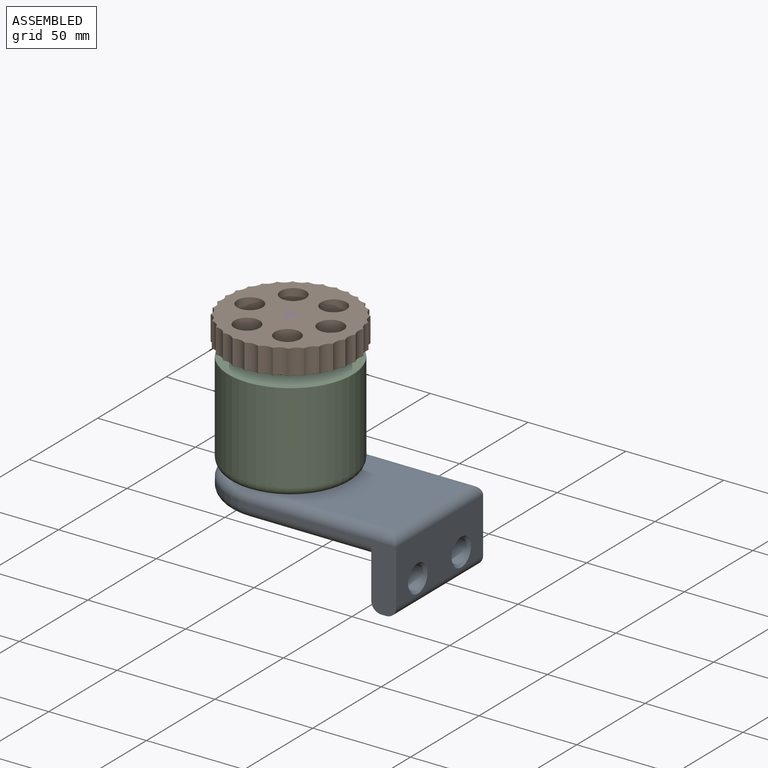
[diagram: assembled view]
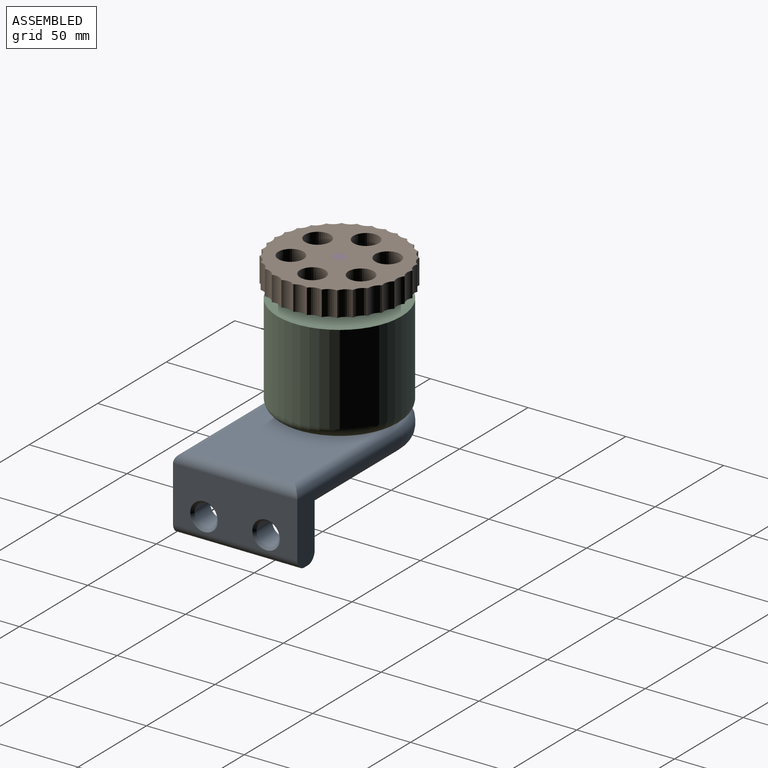
[diagram: assembled view, second angle]
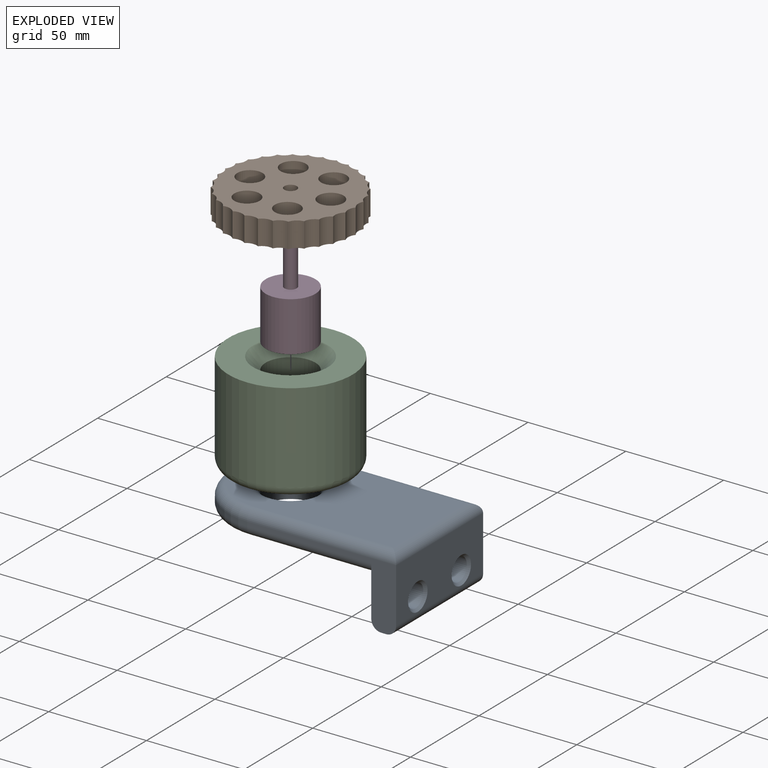
[diagram: exploded view]
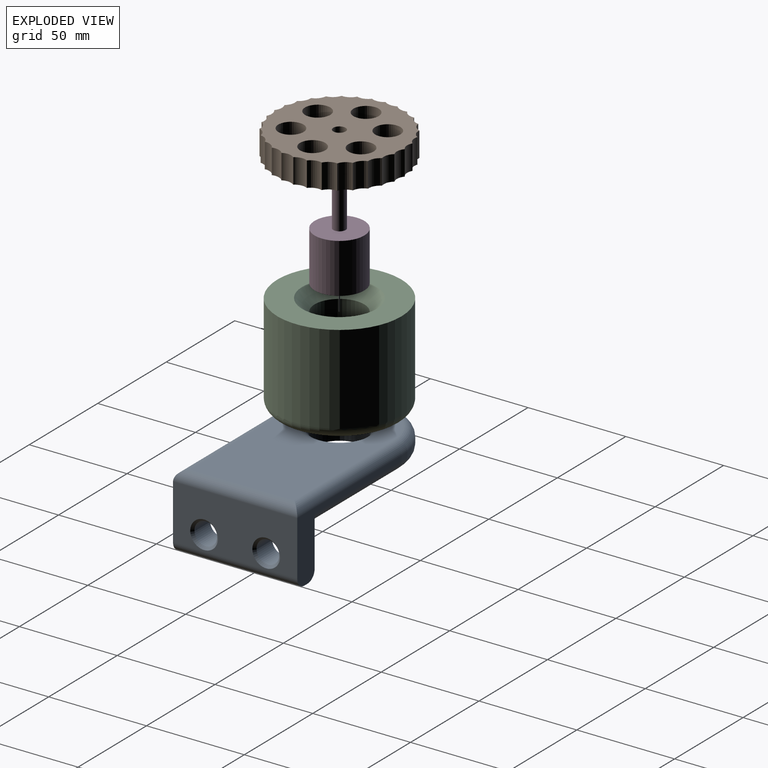
[diagram: exploded view, second angle]
ASSEMBLY  parts=4 mates=3
PART A: 26 faces, bbox 110.6x68.7x38.1 mm
  f0: plane 63.5x2.54mm, normal (0,1,0), area 161.3mm2, adj f2,f11,f12,f16
  f1: plane 90.17x53.34mm, normal (0,0,-1), area 3997.7mm2, adj f5,f11,f12,f13,f14
  f2: cylinder r=31.75mm len=63.5mm, axis (0,0,-1), area 253.4mm2, adj f0,f3,f13,f15
  f3: plane 76.2x33.02mm, normal (0,-1,0), area 569.6mm2, adj f2,f4,f7,f11,f14,f17,f21,f22
  f4: plane 63.55x27.94mm, normal (1,0,0), area 1461.2mm2, adj f3,f8,f19,f21,f24,f25
  f5: cylinder r=12.7mm len=25.4mm, axis (0,0,-1), area 608mm2, adj f1,f23
  f6: plane 97.79x53.39mm, normal (0,0,1), area 3917.8mm2, adj f15,f16,f17,f18,f19,f20,f23
  f7: plane 63.55x2.54mm, normal (0,0,-1), area 161.4mm2, adj f3,f8,f21,f22
  f8: plane 33.02x12.7mm, normal (0,1,0), area 408.3mm2, adj f4,f7,f11,f20,f21,f22
  f9: cylinder r=5.8mm len=11.61mm, axis (1,0,0), area 416.7mm2, adj f11,f25
  f10: cylinder r=5.8mm len=11.61mm, axis (1,0,0), area 416.7mm2, adj f11,f24
  f11: plane 63.55x27.94mm, normal (-1,0,0), area 1091.1mm2, adj f0,f1,f3,f8,f9,f10,f12,f14
  f12: cylinder r=5.08mm len=63.5mm, axis (-1,0,0), area 506.7mm2, adj f0,f1,f11,f13
  f13: torus R=26.67mm, axis (0,0,1), area 749.7mm2, adj f1,f2,f12,f14
  f14: cylinder r=5.08mm len=63.5mm, axis (1,0,0), area 506.7mm2, adj f1,f3,f11,f13
  f15: torus R=26.67mm, axis (0,0,1), area 749.7mm2, adj f2,f6,f16,f17
  f16: cylinder r=5.08mm len=68.58mm, axis (1,0,0), area 521.4mm2, adj f0,f6,f15,f18
  f17: cylinder r=5.08mm len=76.2mm, axis (-1,0,0), area 593.3mm2, adj f3,f6,f15,f19
  f18: cylinder r=5.08mm len=5.13mm, axis (0,-1,0), area 0.4mm2, adj f6,f11,f16,f20
  f19: cylinder r=5.08mm len=63.55mm, axis (0,-1,0), area 477.6mm2, adj f4,f6,f17,f20
  f20: cylinder r=5.08mm len=12.7mm, axis (-1,0,0), area 71.9mm2, adj f6,f8,f18,f19
  f21: cylinder r=5.08mm len=63.55mm, axis (0,1,0), area 507.1mm2, adj f3,f4,f7,f8
  f22: cylinder r=5.08mm len=63.55mm, axis (0,-1,0), area 507.1mm2, adj f3,f7,f8,f11
  f23: torus R=17.78mm, axis (0,0,1), area 729.3mm2, adj f5,f6
  f24: cone r=7.07mm half-angle=45deg, axis (1,0,0), area 72.6mm2, adj f4,f10
  f25: cone r=5.8mm half-angle=45deg, axis (1,0,0), area 72.6mm2, adj f4,f9
PART B: 41 faces, bbox 66.6x66.6x12.7 mm
  f0: cylinder r=5.87mm len=12.7mm, axis (0,0,-1), area 88.5mm2, adj f1,f36,f38,f39
  f1: cylinder r=5.87mm len=12.7mm, axis (0,0,-1), area 88.5mm2, adj f0,f2,f38,f39
  f2: cylinder r=5.87mm len=12.7mm, axis (0,0,-1), area 88.5mm2, adj f1,f3,f38,f39
  f3: cylinder r=5.87mm len=12.7mm, axis (0,0,-1), area 88.5mm2, adj f2,f4,f38,f39
  f4: cylinder r=5.87mm len=12.7mm, axis (0,0,-1), area 88.5mm2, adj f3,f5,f38,f39
  f5: cylinder r=5.87mm len=12.7mm, axis (0,0,-1), area 88.5mm2, adj f4,f6,f38,f39
  f6: cylinder r=5.87mm len=12.7mm, axis (0,0,-1), area 88.5mm2, adj f5,f7,f38,f39
  f7: cylinder r=5.87mm len=12.7mm, axis (0,0,-1), area 88.5mm2, adj f6,f8,f38,f39
  f8: cylinder r=5.87mm len=12.7mm, axis (0,0,-1), area 88.5mm2, adj f7,f9,f38,f39
  f9: cylinder r=5.87mm len=12.7mm, axis (0,0,-1), area 88.5mm2, adj f8,f10,f38,f39
  f10: cylinder r=5.87mm len=12.7mm, axis (0,0,-1), area 88.5mm2, adj f9,f11,f38,f39
  f11: cylinder r=5.87mm len=12.7mm, axis (0,0,-1), area 88.5mm2, adj f10,f12,f38,f39
  f12: cylinder r=5.87mm len=12.7mm, axis (0,0,-1), area 88.5mm2, adj f11,f13,f38,f39
  f13: cylinder r=5.87mm len=12.7mm, axis (0,0,-1), area 88.5mm2, adj f12,f14,f38,f39
  f14: cylinder r=5.87mm len=12.7mm, axis (0,0,-1), area 88.5mm2, adj f13,f15,f38,f39
  f15: cylinder r=5.87mm len=12.7mm, axis (0,0,-1), area 88.5mm2, adj f14,f16,f38,f39
  f16: cylinder r=5.87mm len=12.7mm, axis (0,0,-1), area 88.5mm2, adj f15,f17,f38,f39
  f17: cylinder r=5.87mm len=12.7mm, axis (0,0,-1), area 88.5mm2, adj f16,f18,f38,f39
  f18: cylinder r=5.87mm len=12.7mm, axis (0,0,-1), area 88.5mm2, adj f17,f19,f38,f39
  f19: cylinder r=5.87mm len=12.7mm, axis (0,0,-1), area 88.5mm2, adj f18,f20,f38,f39
  f20: cylinder r=5.87mm len=12.7mm, axis (0,0,-1), area 88.5mm2, adj f19,f21,f38,f39
  f21: cylinder r=5.87mm len=12.7mm, axis (0,0,-1), area 88.5mm2, adj f20,f22,f38,f39
  f22: cylinder r=5.87mm len=12.7mm, axis (0,0,-1), area 88.5mm2, adj f21,f23,f38,f39
  f23: cylinder r=5.87mm len=12.7mm, axis (0,0,-1), area 88.5mm2, adj f22,f24,f38,f39
  f24: cylinder r=5.87mm len=12.7mm, axis (0,0,-1), area 88.5mm2, adj f23,f25,f38,f39
  f25: cylinder r=5.87mm len=12.7mm, axis (0,0,-1), area 88.5mm2, adj f24,f26,f38,f39
  f26: cylinder r=5.87mm len=12.7mm, axis (0,0,-1), area 88.5mm2, adj f25,f27,f38,f39
  f27: cylinder r=5.87mm len=12.7mm, axis (0,0,-1), area 88.5mm2, adj f26,f28,f38,f39
  f28: cylinder r=5.87mm len=12.7mm, axis (0,0,-1), area 88.5mm2, adj f27,f29,f38,f39
  f29: cylinder r=5.87mm len=12.7mm, axis (0,0,-1), area 88.5mm2, adj f28,f30,f38,f39
  f30: cylinder r=5.87mm len=12.7mm, axis (0,0,-1), area 88.5mm2, adj f29,f36,f38,f39
  f31: cylinder r=6.45mm len=12.91mm, axis (0,0,-1), area 515.1mm2, adj f38,f39
  f32: cylinder r=6.45mm len=12.91mm, axis (0,0,-1), area 515.1mm2, adj f38,f39
  f33: cylinder r=6.45mm len=12.91mm, axis (0,0,-1), area 515.1mm2, adj f38,f39
  f34: cylinder r=6.45mm len=12.91mm, axis (0,0,-1), area 515.1mm2, adj f38,f39
  f35: cylinder r=6.45mm len=12.91mm, axis (0,0,-1), area 515.1mm2, adj f38,f39
  f36: cylinder r=5.87mm len=12.7mm, axis (0,0,-1), area 88.5mm2, adj f0,f30,f38,f39
  f37: cylinder r=6.45mm len=12.91mm, axis (0,0,-1), area 515.1mm2, adj f38,f39
  f38: plane 66.65x66.65mm, normal (0,0,1), area 2540.1mm2, adj f0,f1,f2,f3,f4,f5,f6,f7
  f39: plane 66.65x66.65mm, normal (0,0,-1), area 2540.1mm2, adj f0,f1,f2,f3,f4,f5,f6,f7
  f40: cylinder r=3.17mm len=12.7mm, axis (0,0,-1), area 253.4mm2, adj f38,f39
PART C: 6 faces, bbox 68.7x68.7x50.8 mm
  f0: cylinder r=31.75mm len=63.5mm, axis (0,0,-1), area 9120.7mm2, adj f2,f4
  f1: cylinder r=12.7mm len=44.45mm, axis (0,0,-1), area 3547mm2, adj f3,f5
  f2: plane 63.5x63.5mm, normal (0,0,1), area 2026.8mm2, adj f0,f5
  f3: plane 53.34x53.34mm, normal (0,0,-1), area 1727.9mm2, adj f1,f4
  f4: torus R=26.67mm, axis (0,0,1), area 1499.3mm2, adj f0,f3
  f5: cone r=12.7mm half-angle=45deg, axis (0,0,1), area 895.7mm2, adj f1,f2
PART D: 5 faces, bbox 25.4x25.4x50.8 mm
  f0: cylinder r=3.17mm len=25.4mm, axis (0,0,-1), area 506.7mm2, adj f1,f4
  f1: plane 6.35x6.35mm, normal (0,0,1), area 31.7mm2, adj f0
  f2: cylinder r=12.7mm len=25.4mm, axis (0,0,1), area 2026.8mm2, adj f3,f4
  f3: plane 25.4x25.4mm, normal (0,0,-1), area 506.7mm2, adj f2
  f4: plane 25.4x25.4mm, normal (0,0,1), area 475mm2, adj f0,f2
PLACE A t=(-6.46,97.46,-11.67)mm fixed
PLACE B rot(axis=(0,0,-1),28.4deg) t=(-44.57,97.44,58.18)mm
PLACE C rot(axis=(0,0,-1),90deg) t=(-44.56,59.36,1.03)mm
PLACE D t=(-44.56,97.46,45.48)mm
MATE revolute B.f40 <-> D.f0  axis (0,0,1) through (-44.56,97.46,70.88)mm
MATE fastened C.f0 <-> D.f2  axis (0,0,1) through (-44.56,97.46,45.48)mm
MATE fastened A.f2 <-> C.f0  axis (0,0,1) through (-44.56,97.46,1.03)mm
